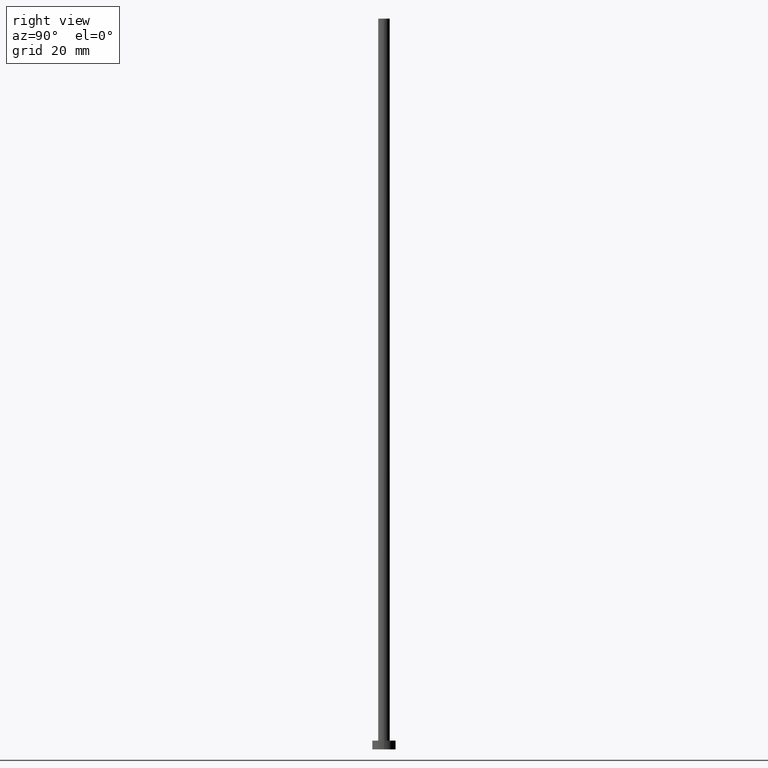
[diagram: clean part render]
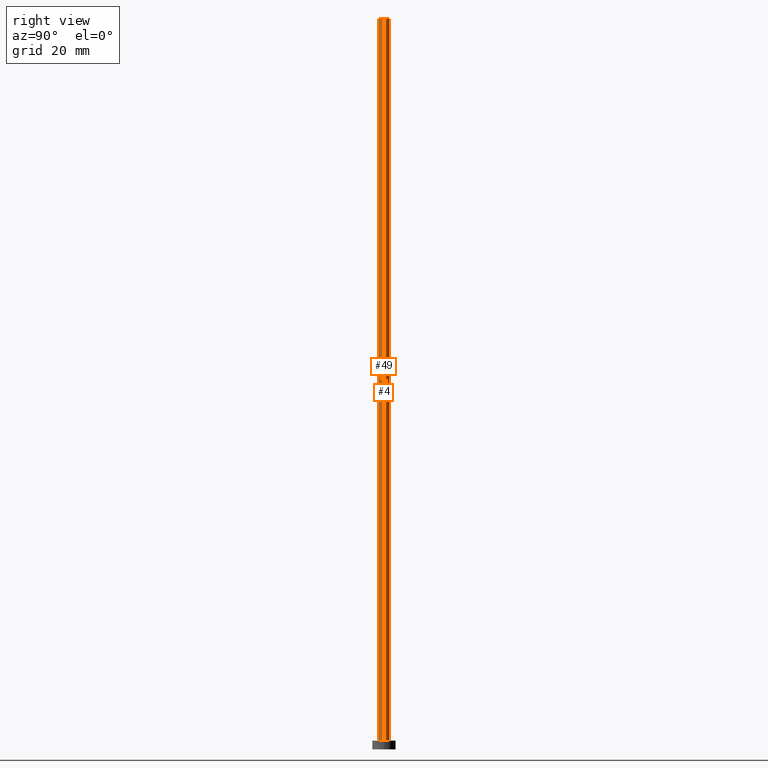
[diagram: same view with one multi-face feature highlighted, each face labeled with its STEP entity id]
A machine part, right view. The highlighted faces form ONE feature: a constant-radius fillet chain: 2 tangent blend faces with common blend radius 2 mm. The faces share edges in the B-rep.
Their STEP definitions:
[1] entity #49 (Cylinder):
#11 = CARTESIAN_POINT ( 'NONE',  ( 0.000000000000000000, 0.000000000000000000, 250.0000000000000000 ) ) ;
#14 = DIRECTION ( 'NONE',  ( 1.000000000000000000, 0.000000000000000000, 0.000000000000000000 ) ) ;
#18 = CIRCLE ( 'NONE', #166, 2.000000000000000000 ) ;
#24 = EDGE_LOOP ( 'NONE', ( #105, #86, #127, #150 ) ) ;
#28 = CARTESIAN_POINT ( 'NONE',  ( 2.000000000000000000, 2.449293598294706414E-16, 250.0000000000000000 ) ) ;
#35 = EDGE_CURVE ( 'NONE', #78, #60, #147, .T. ) ;
#36 = VECTOR ( 'NONE', #179, 1000.000000000000000 ) ;
#49 = ADVANCED_FACE ( 'NONE', ( #65 ), #132, .T. ) ;
#52 = CARTESIAN_POINT ( 'NONE',  ( -2.000000000000000000, 0.000000000000000000, 250.0000000000000000 ) ) ;
#54 = CARTESIAN_POINT ( 'NONE',  ( 0.000000000000000000, 0.000000000000000000, 3.000000000000000000 ) ) ;
#55 = CARTESIAN_POINT ( 'NONE',  ( 2.000000000000000000, 2.449293598294706414E-16, 3.000000000000000000 ) ) ;
#58 = AXIS2_PLACEMENT_3D ( 'NONE', #88, #173, #189 ) ;
#60 = VERTEX_POINT ( 'NONE', #28 ) ;
#65 = FACE_OUTER_BOUND ( 'NONE', #24, .T. ) ;
#70 = DIRECTION ( 'NONE',  ( -1.000000000000000000, 0.000000000000000000, 0.000000000000000000 ) ) ;
#76 = CARTESIAN_POINT ( 'NONE',  ( -2.000000000000000000, 0.000000000000000000, 250.0000000000000000 ) ) ;
#78 = VERTEX_POINT ( 'NONE', #76 ) ;
#86 = ORIENTED_EDGE ( 'NONE', *, *, #35, .F. ) ;
#88 = CARTESIAN_POINT ( 'NONE',  ( 0.000000000000000000, 0.000000000000000000, 250.0000000000000000 ) ) ;
#105 = ORIENTED_EDGE ( 'NONE', *, *, #158, .F. ) ;
#107 = VERTEX_POINT ( 'NONE', #55 ) ;
#108 = VERTEX_POINT ( 'NONE', #195 ) ;
#112 = EDGE_CURVE ( 'NONE', #108, #107, #18, .T. ) ;
#116 = DIRECTION ( 'NONE',  ( -0.000000000000000000, -0.000000000000000000, -1.000000000000000000 ) ) ;
#127 = ORIENTED_EDGE ( 'NONE', *, *, #141, .T. ) ;
#132 = CYLINDRICAL_SURFACE ( 'NONE', #176, 2.000000000000000000 ) ;
#141 = EDGE_CURVE ( 'NONE', #78, #108, #156, .T. ) ;
#147 = CIRCLE ( 'NONE', #58, 2.000000000000000000 ) ;
#150 = ORIENTED_EDGE ( 'NONE', *, *, #112, .T. ) ;
#156 = LINE ( 'NONE', #52, #36 ) ;
#158 = EDGE_CURVE ( 'NONE', #60, #107, #217, .T. ) ;
#166 = AXIS2_PLACEMENT_3D ( 'NONE', #54, #200, #14 ) ;
#173 = DIRECTION ( 'NONE',  ( 0.000000000000000000, 0.000000000000000000, 1.000000000000000000 ) ) ;
#176 = AXIS2_PLACEMENT_3D ( 'NONE', #11, #246, #70 ) ;
#179 = DIRECTION ( 'NONE',  ( -0.000000000000000000, -0.000000000000000000, -1.000000000000000000 ) ) ;
#189 = DIRECTION ( 'NONE',  ( 1.000000000000000000, 0.000000000000000000, 0.000000000000000000 ) ) ;
#195 = CARTESIAN_POINT ( 'NONE',  ( -2.000000000000000000, 0.000000000000000000, 3.000000000000000000 ) ) ;
#200 = DIRECTION ( 'NONE',  ( 0.000000000000000000, 0.000000000000000000, 1.000000000000000000 ) ) ;
#217 = LINE ( 'NONE', #220, #251 ) ;
#220 = CARTESIAN_POINT ( 'NONE',  ( 2.000000000000000000, 2.449293598294706414E-16, 250.0000000000000000 ) ) ;
#246 = DIRECTION ( 'NONE',  ( -0.000000000000000000, -0.000000000000000000, -1.000000000000000000 ) ) ;
#251 = VECTOR ( 'NONE', #116, 1000.000000000000000 ) ;
[2] entity #4 (Cylinder):
#4 = ADVANCED_FACE ( 'NONE', ( #243 ), #206, .T. ) ;
#5 = ORIENTED_EDGE ( 'NONE', *, *, #8, .F. ) ;
#8 = EDGE_CURVE ( 'NONE', #60, #78, #184, .T. ) ;
#9 = CARTESIAN_POINT ( 'NONE',  ( 0.000000000000000000, 0.000000000000000000, 250.0000000000000000 ) ) ;
#28 = CARTESIAN_POINT ( 'NONE',  ( 2.000000000000000000, 2.449293598294706414E-16, 250.0000000000000000 ) ) ;
#36 = VECTOR ( 'NONE', #179, 1000.000000000000000 ) ;
#41 = EDGE_LOOP ( 'NONE', ( #5, #125, #145, #205 ) ) ;
#45 = CARTESIAN_POINT ( 'NONE',  ( 0.000000000000000000, 0.000000000000000000, 3.000000000000000000 ) ) ;
#52 = CARTESIAN_POINT ( 'NONE',  ( -2.000000000000000000, 0.000000000000000000, 250.0000000000000000 ) ) ;
#55 = CARTESIAN_POINT ( 'NONE',  ( 2.000000000000000000, 2.449293598294706414E-16, 3.000000000000000000 ) ) ;
#60 = VERTEX_POINT ( 'NONE', #28 ) ;
#67 = AXIS2_PLACEMENT_3D ( 'NONE', #9, #87, #152 ) ;
#76 = CARTESIAN_POINT ( 'NONE',  ( -2.000000000000000000, 0.000000000000000000, 250.0000000000000000 ) ) ;
#78 = VERTEX_POINT ( 'NONE', #76 ) ;
#87 = DIRECTION ( 'NONE',  ( 0.000000000000000000, 0.000000000000000000, 1.000000000000000000 ) ) ;
#107 = VERTEX_POINT ( 'NONE', #55 ) ;
#108 = VERTEX_POINT ( 'NONE', #195 ) ;
#116 = DIRECTION ( 'NONE',  ( -0.000000000000000000, -0.000000000000000000, -1.000000000000000000 ) ) ;
#121 = AXIS2_PLACEMENT_3D ( 'NONE', #168, #209, #244 ) ;
#125 = ORIENTED_EDGE ( 'NONE', *, *, #158, .T. ) ;
#133 = DIRECTION ( 'NONE',  ( 1.000000000000000000, 0.000000000000000000, 0.000000000000000000 ) ) ;
#137 = AXIS2_PLACEMENT_3D ( 'NONE', #45, #228, #133 ) ;
#141 = EDGE_CURVE ( 'NONE', #78, #108, #156, .T. ) ;
#145 = ORIENTED_EDGE ( 'NONE', *, *, #210, .T. ) ;
#152 = DIRECTION ( 'NONE',  ( 1.000000000000000000, 0.000000000000000000, 0.000000000000000000 ) ) ;
#156 = LINE ( 'NONE', #52, #36 ) ;
#158 = EDGE_CURVE ( 'NONE', #60, #107, #217, .T. ) ;
#168 = CARTESIAN_POINT ( 'NONE',  ( 0.000000000000000000, 0.000000000000000000, 250.0000000000000000 ) ) ;
#179 = DIRECTION ( 'NONE',  ( -0.000000000000000000, -0.000000000000000000, -1.000000000000000000 ) ) ;
#184 = CIRCLE ( 'NONE', #67, 2.000000000000000000 ) ;
#195 = CARTESIAN_POINT ( 'NONE',  ( -2.000000000000000000, 0.000000000000000000, 3.000000000000000000 ) ) ;
#205 = ORIENTED_EDGE ( 'NONE', *, *, #141, .F. ) ;
#206 = CYLINDRICAL_SURFACE ( 'NONE', #121, 2.000000000000000000 ) ;
#209 = DIRECTION ( 'NONE',  ( -0.000000000000000000, -0.000000000000000000, -1.000000000000000000 ) ) ;
#210 = EDGE_CURVE ( 'NONE', #107, #108, #235, .T. ) ;
#217 = LINE ( 'NONE', #220, #251 ) ;
#220 = CARTESIAN_POINT ( 'NONE',  ( 2.000000000000000000, 2.449293598294706414E-16, 250.0000000000000000 ) ) ;
#228 = DIRECTION ( 'NONE',  ( 0.000000000000000000, 0.000000000000000000, 1.000000000000000000 ) ) ;
#235 = CIRCLE ( 'NONE', #137, 2.000000000000000000 ) ;
#243 = FACE_OUTER_BOUND ( 'NONE', #41, .T. ) ;
#244 = DIRECTION ( 'NONE',  ( -1.000000000000000000, 0.000000000000000000, 0.000000000000000000 ) ) ;
#251 = VECTOR ( 'NONE', #116, 1000.000000000000000 ) ;